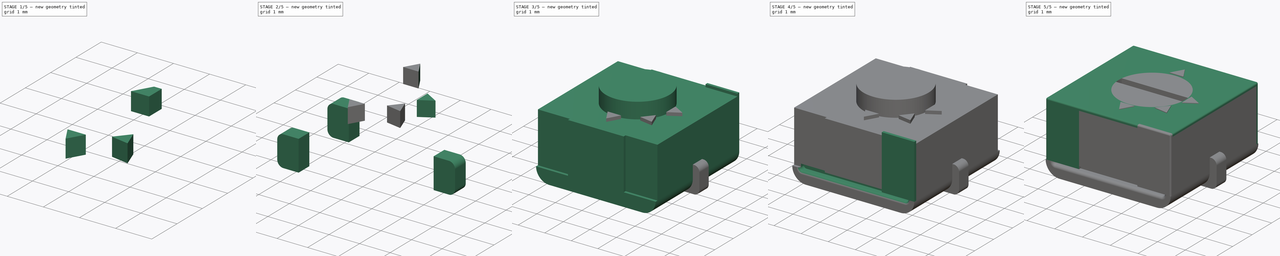
[diagram: build sequence overview — one tinted view per stage of 5, left to right]
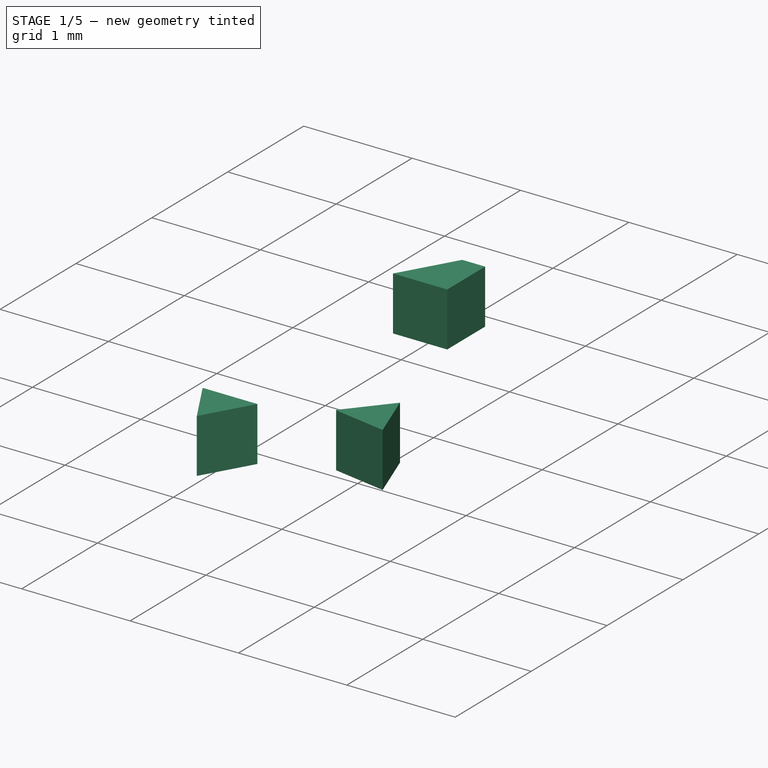
[diagram: stage 1 of 5 — iso view after this stage's code; geometry added in this stage tinted green]
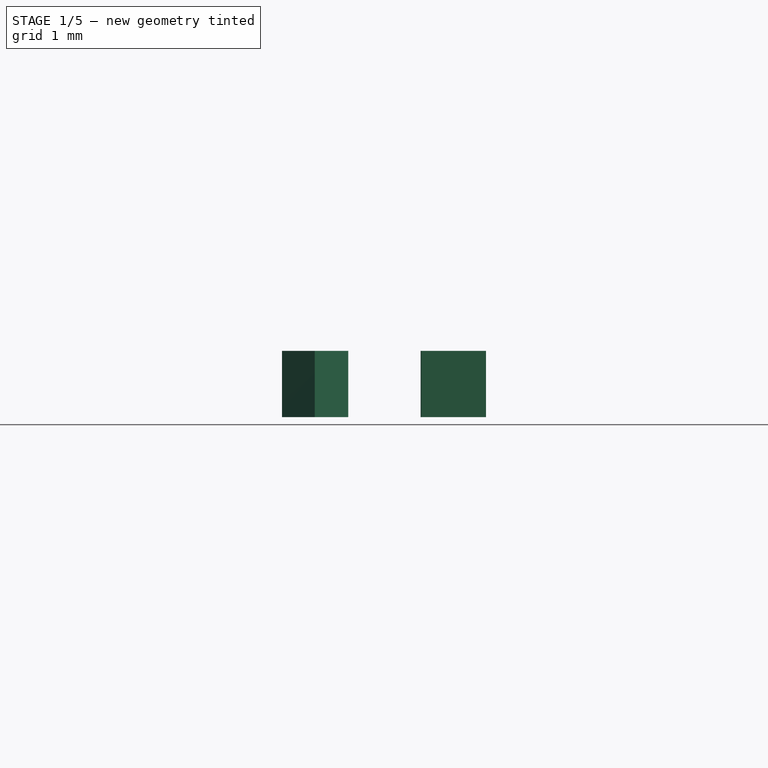
[diagram: stage 1 of 5 — front view after this stage's code; geometry added in this stage tinted green]
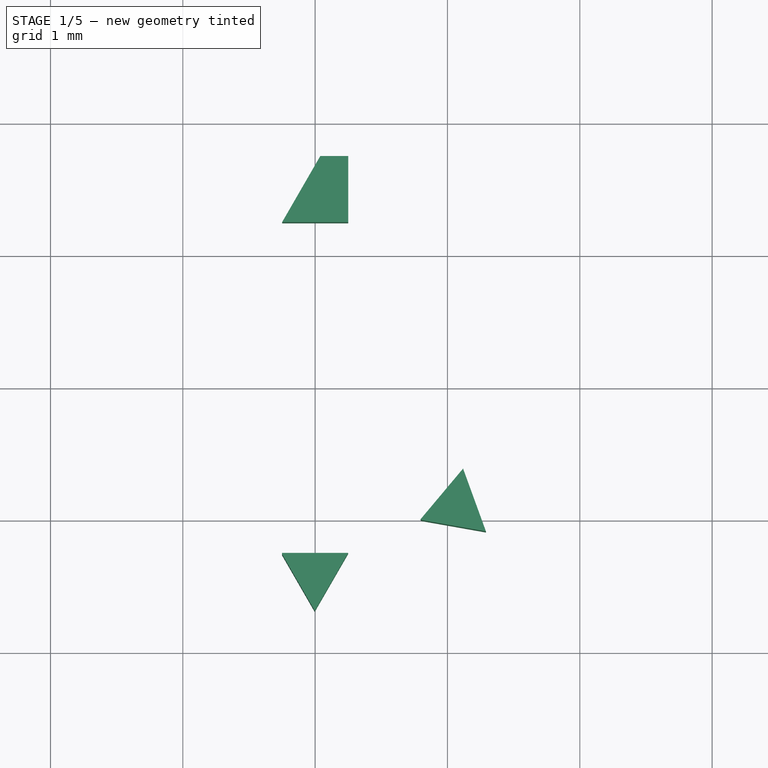
[diagram: stage 1 of 5 — top view after this stage's code; geometry added in this stage tinted green]
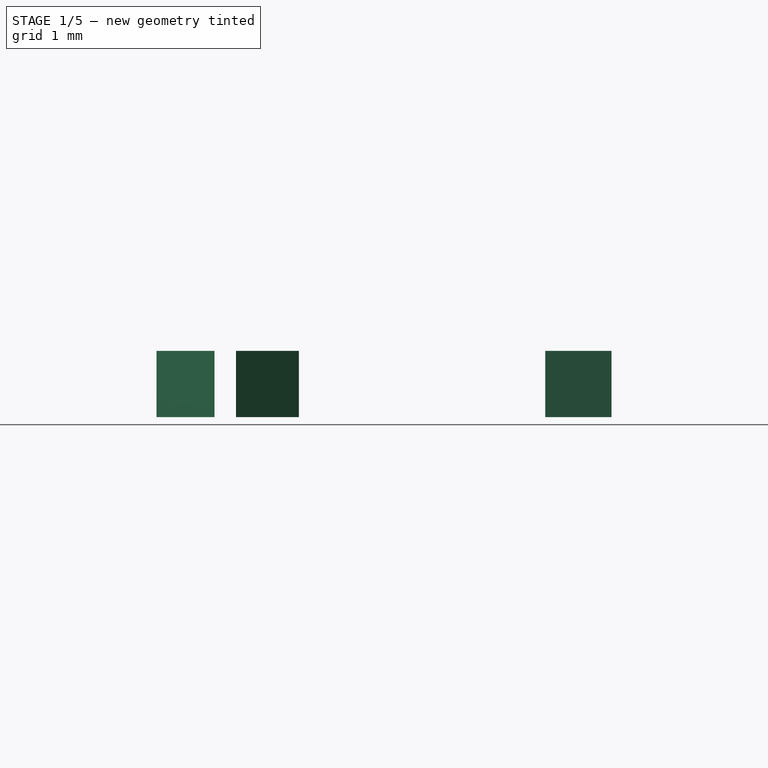
[diagram: stage 1 of 5 — right view after this stage's code; geometry added in this stage tinted green]
FCSTD DOCUMENT  (FreeCAD 0.17R11223 (Git))
Label: Potentiometer_Bourns_3314J_Vertical_03
License: All rights reserved
LicenseURL: http://en.wikipedia.org/wiki/All_rights_reserved
objects: Part::Box×27, Part::Cut×17, Part::Fillet×14, Part::MultiFuse×4, Part::Cylinder×3, Sketcher::SketchObject×1, PartDesign::Pad×1, PartDesign::Body×1
note: 69 computed .brp shape members not serialized (recipe doc carries the construction recipe); baked Part::Feature solids carry a one-line shape summary decoded from their .brp

FEATURE [Part::Box] Box027  label="Kub027"
  AttacherType = Attacher::AttachEngine3D
  Height = 0.5
  Length = 0.5
  Placement = pos=(-0.25,1.25,2.02) rot=(0,0,1;0rad)
  Width = 0.5
FEATURE [Part::Box] Box029  label="Kub029"
  AttacherType = Attacher::AttachEngine3D
  Height = 0.5
  Length = 1
  Placement = pos=(-0.394,1,2.02) rot=(0,0,1;1.0472rad)
  Width = 1
FEATURE [Part::Cut] Cut019
  Base = -> Box027
  Tool = -> Box029
FEATURE [Part::Box] Box030  label="Kub030"
  AttacherType = Attacher::AttachEngine3D
  Height = 0.5
  Length = 0.5
  Placement = pos=(-0.25,1.25,2.02) rot=(0,0,1;0rad)
  Width = 0.5
FEATURE [Part::Box] Box031  label="Kub031"
  AttacherType = Attacher::AttachEngine3D
  Height = 0.5
  Length = 1
  Placement = pos=(0.4,1,2.02) rot=(0,0,1;0.523599rad)
  Width = 1
FEATURE [Part::Box] Box032  label="Kub032"
  AttacherType = Attacher::AttachEngine3D
  Height = 0.5
  Length = 1
  Placement = pos=(-0.394,1,2.02) rot=(0,0,1;1.0472rad)
  Width = 1
FEATURE [Part::Cut] Cut021
  Base = -> Box030
  Tool = -> Box032
FEATURE [Part::Cut] Cut022
  Base = -> Cut021
  Placement = pos=(0,0,0) rot=(0,0,1;3.14159rad)
  Tool = -> Box031
FEATURE [Part::Box] Box033  label="Kub033"
  AttacherType = Attacher::AttachEngine3D
  Height = 0.5
  Length = 0.5
  Placement = pos=(-0.25,1.25,2.02) rot=(0,0,1;0rad)
  Width = 0.5
FEATURE [Part::Box] Box034  label="Kub034"
  AttacherType = Attacher::AttachEngine3D
  Height = 0.5
  Length = 1
  Placement = pos=(0.4,1,2.02) rot=(0,0,1;0.523599rad)
  Width = 1
FEATURE [Part::Box] Box035  label="Kub035"
  AttacherType = Attacher::AttachEngine3D
  Height = 0.5
  Length = 1
  Placement = pos=(-0.394,1,2.02) rot=(0,0,1;1.0472rad)
  Width = 1
FEATURE [Part::Cut] Cut023
  Base = -> Box033
  Tool = -> Box035
FEATURE [Part::Cut] Cut024
  Base = -> Cut023
  Placement = pos=(0,0,0) rot=(0,0,1;4.01426rad)
  Tool = -> Box034
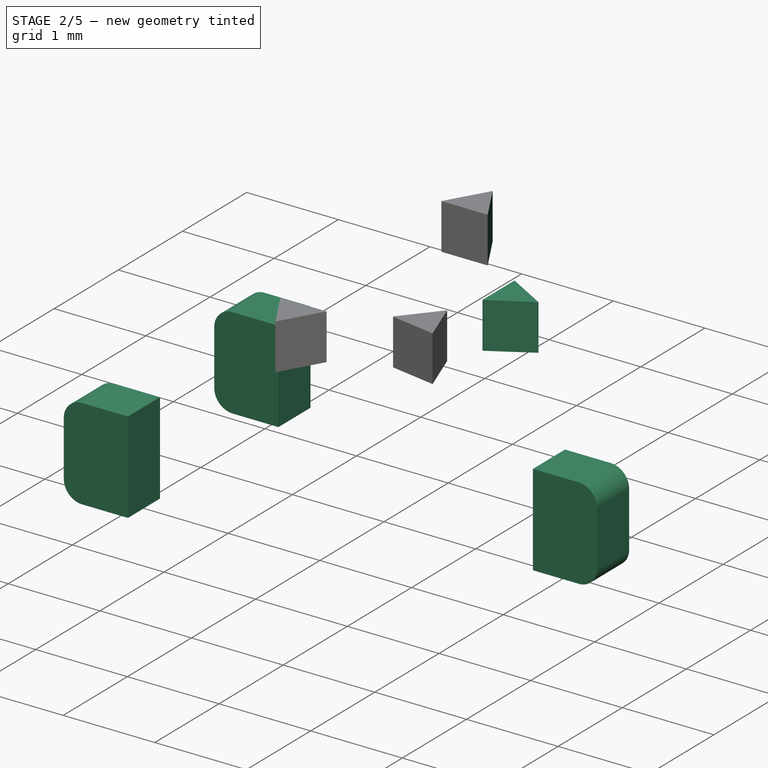
[diagram: stage 2 of 5 — iso view after this stage's code; geometry added in this stage tinted green]
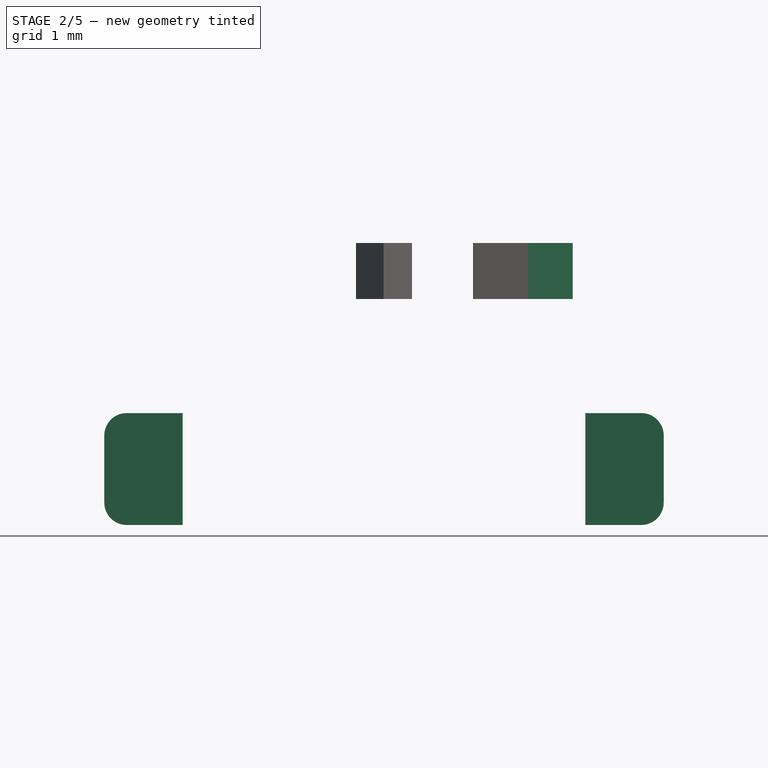
[diagram: stage 2 of 5 — front view after this stage's code; geometry added in this stage tinted green]
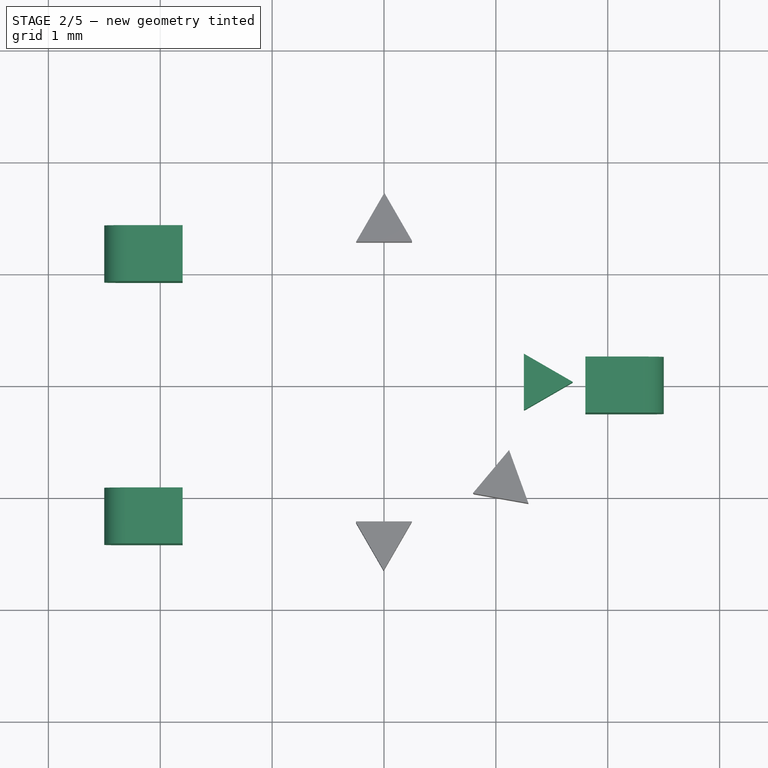
[diagram: stage 2 of 5 — top view after this stage's code; geometry added in this stage tinted green]
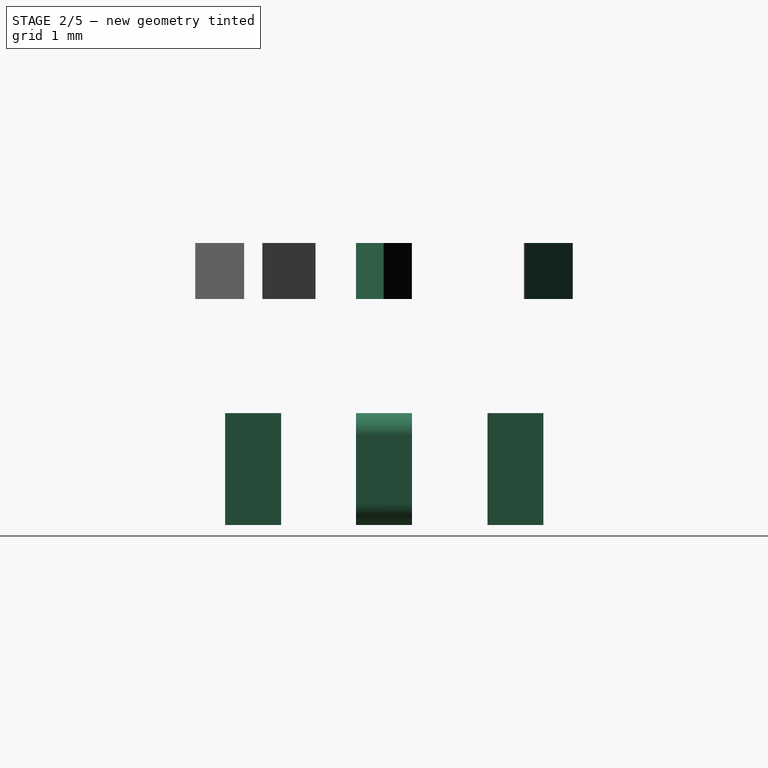
[diagram: stage 2 of 5 — right view after this stage's code; geometry added in this stage tinted green]
FEATURE [Part::Box] Box009  label="Kub009"
  AttacherType = Attacher::AttachEngine3D
  Height = 0.5
  Length = 0.5
  Placement = pos=(-0.25,1.25,2.02) rot=(0,0,1;0rad)
  Width = 0.5
FEATURE [Part::Box] Box010  label="Kub010"
  AttacherType = Attacher::AttachEngine3D
  Height = 0.5
  Length = 1
  Placement = pos=(0.4,1,2.02) rot=(0,0,1;0.523599rad)
  Width = 1
FEATURE [Part::Box] Box011  label="Kub011"
  AttacherType = Attacher::AttachEngine3D
  Height = 0.5
  Length = 1
  Placement = pos=(-0.394,1,2.02) rot=(0,0,1;1.0472rad)
  Width = 1
FEATURE [Part::Box] Box024  label="Kub024"
  AttacherType = Attacher::AttachEngine3D
  Height = 1
  Length = 0.7
  Placement = pos=(1.8,-0.25,0) rot=(0,0,1;0rad)
  Width = 0.5
FEATURE [Part::Box] Box025  label="Kub025"
  AttacherType = Attacher::AttachEngine3D
  Height = 1
  Length = 0.7
  Placement = pos=(-2.5,-1.42,0) rot=(0,0,1;0rad)
  Width = 0.5
FEATURE [Part::Box] Box026  label="Kub026"
  AttacherType = Attacher::AttachEngine3D
  Height = 1
  Length = 0.7
  Placement = pos=(-2.5,0.925,0) rot=(0,0,1;0rad)
  Width = 0.5
FEATURE [Part::Fillet] Fillet011
  Base = -> Box024
  Edges = 2 edges r=0.2: [Edge6,Edge8]
FEATURE [Part::Fillet] Fillet012
  Base = -> Box025
  Edges = 2 edges r=0.2: [Edge2,Edge4]
FEATURE [Part::Fillet] Fillet013
  Base = -> Box026
  Edges = 2 edges r=0.2: [Edge2,Edge4]
FEATURE [Part::Cut] Cut017
  Base = -> Box009
  Tool = -> Box011
FEATURE [Part::Cut] Cut018
  Base = -> Cut017
  Tool = -> Box010
FEATURE [Part::Box] Box028  label="Kub028"
  AttacherType = Attacher::AttachEngine3D
  Height = 0.5
  Length = 1
  Placement = pos=(0.4,1,2.02) rot=(0,0,1;0.523599rad)
  Width = 1
FEATURE [Part::Cut] Cut020
  Base = -> Cut019
  Placement = pos=(0,0,0) rot=(0,0,-1;1.5708rad)
  Tool = -> Box028
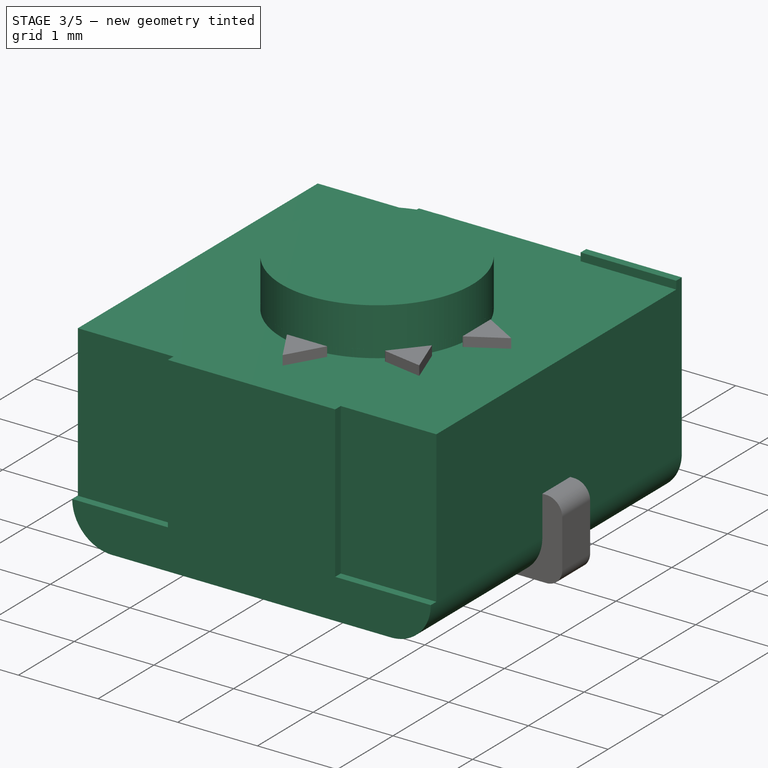
[diagram: stage 3 of 5 — iso view after this stage's code; geometry added in this stage tinted green]
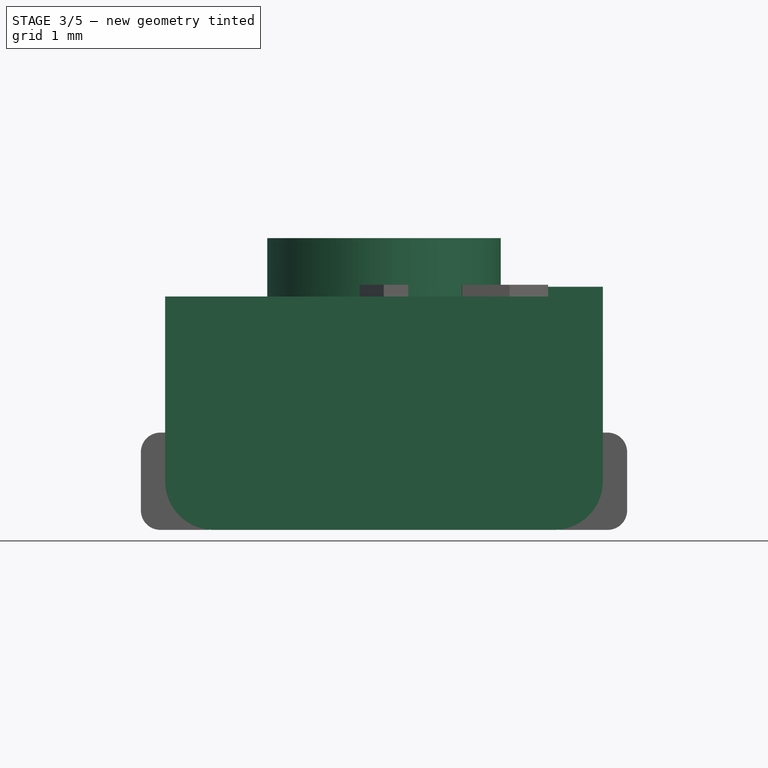
[diagram: stage 3 of 5 — front view after this stage's code; geometry added in this stage tinted green]
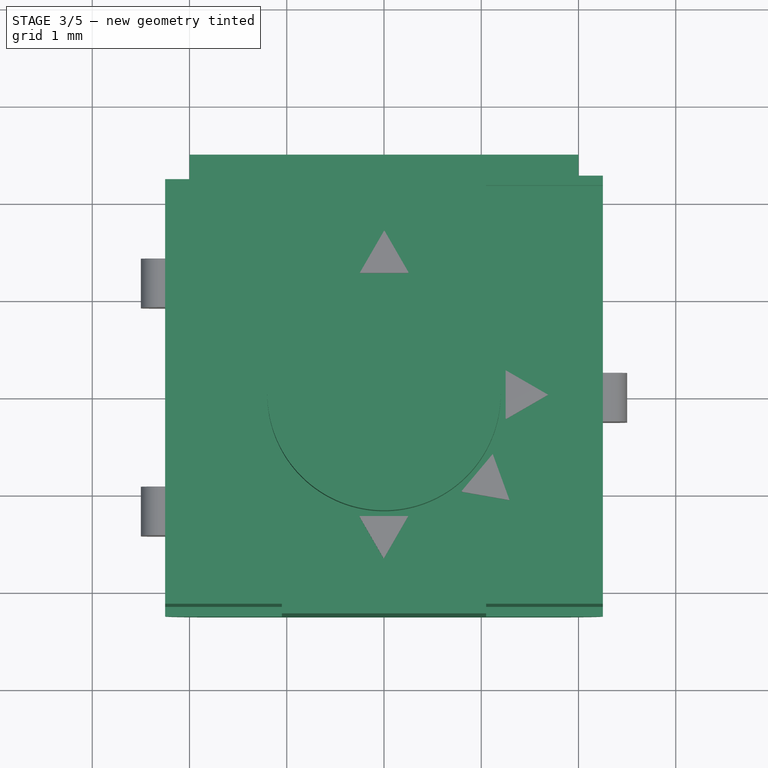
[diagram: stage 3 of 5 — top view after this stage's code; geometry added in this stage tinted green]
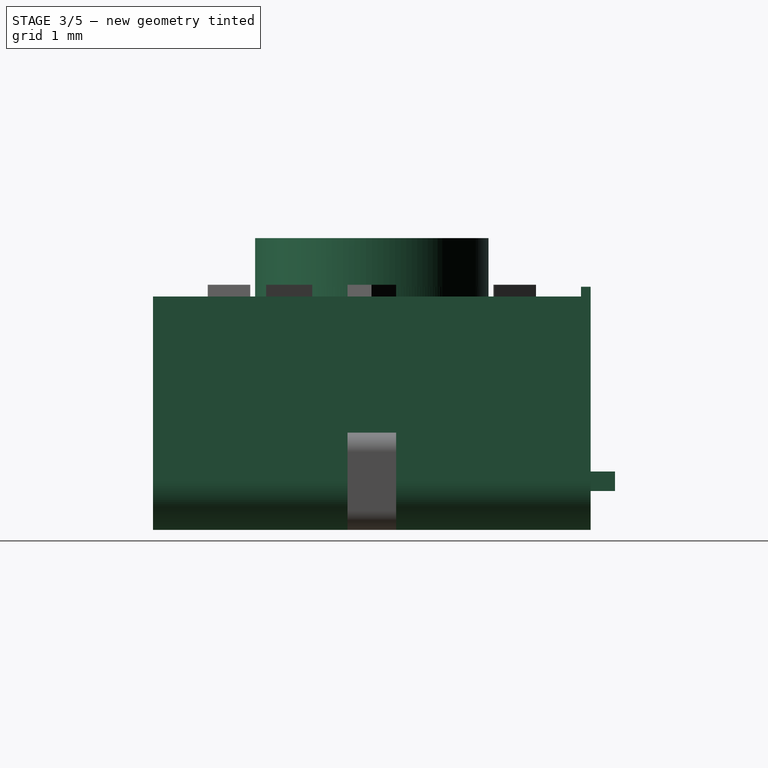
[diagram: stage 3 of 5 — right view after this stage's code; geometry added in this stage tinted green]
FEATURE [Sketcher::SketchObject] Sketch
  MapMode = 5
  Support = -> [XY_Plane]
  sketch-geometry (4):
    g0: LineSegment StartX=-2.25 StartY=2.25 StartZ=0 EndX=2.25 EndY=2.25 EndZ=0
    g1: LineSegment StartX=2.25 StartY=2.25 StartZ=0 EndX=2.25 EndY=-2.25 EndZ=0
    g2: LineSegment StartX=2.25 StartY=-2.25 StartZ=0 EndX=-2.25 EndY=-2.25 EndZ=0
    g3: LineSegment StartX=-2.25 StartY=-2.25 StartZ=0 EndX=-2.25 EndY=2.25 EndZ=0
  constraints (12):
    c: Coincident(g0,g1)
    c: Coincident(g1,g2)
    c: Coincident(g2,g3)
    c: Coincident(g3,g0)
    c: Horizontal(g0)
    c: Horizontal(g2)
    c: Vertical(g1)
    c: Vertical(g3)
    c: DistanceY(g2,g0) = 4.5
    c: DistanceX(g0,g0) = 4.5
    c: DistanceY(g-1,g0) = 2.25
    c: DistanceX(g0,g-1) = 2.25
FEATURE [PartDesign::Pad] Pad
  Length = 2.4
  Length2 = 100
  Profile = -> Sketch
  Type = 0
FEATURE [PartDesign::Body] Body
  Group = -> [Sketch,Pad]
  Origin = -> BodyOrigin
  Tip = -> Pad
FEATURE [Part::Fillet] Fillet
  Base = -> Pad
  Edges = 2 edges r=0.5: [Edge6,Edge11]
FEATURE [Part::Box] Box003  label="Kub003"
  AttacherType = Attacher::AttachEngine3D
  Height = 2
  Length = 1.2
  Placement = pos=(1.05,-2.25,0.5) rot=(0,0,1;0rad)
  Width = 0.1
FEATURE [Part::Box] Box004  label="Kub004"
  AttacherType = Attacher::AttachEngine3D
  Height = 2
  Length = 1.2
  Placement = pos=(-2.25,-2.25,0.5) rot=(0,0,1;0rad)
  Width = 0.1
FEATURE [Part::Box] Box005  label="Kub005"
  AttacherType = Attacher::AttachEngine3D
  Height = 2
  Length = 1.2
  Placement = pos=(-2.25,2.15,0.5) rot=(0,0,1;0rad)
  Width = 0.1
FEATURE [Part::Box] Box006  label="Kub006"
  AttacherType = Attacher::AttachEngine3D
  Height = 2
  Length = 1.2
  Placement = pos=(1.05,2.15,0.5) rot=(0,0,1;0rad)
  Width = 0.1
FEATURE [Part::Cut] Cut
  Base = -> Fillet
  Tool = -> Box005
FEATURE [Part::Cut] Cut001
  Base = -> Cut
  Tool = -> Box004
FEATURE [Part::Cut] Cut002
  Base = -> Cut001
  Tool = -> Box003
FEATURE [Part::Cylinder] Cylinder001
  Angle = 360
  AttacherType = Attacher::AttachEngine3D
  Height = 2
  Placement = pos=(0,0,1) rot=(0,0,1;0rad)
  Radius = 1.2
FEATURE [Part::Cylinder] Cylinder002
  Angle = 360
  AttacherType = Attacher::AttachEngine3D
  Height = 1.5
  Placement = pos=(0,0,1) rot=(0,0,1;0rad)
  Radius = 1.2
FEATURE [Part::Box] Box021  label="Kub021"
  AttacherType = Attacher::AttachEngine3D
  Height = 0.2
  Length = 4
  Placement = pos=(-2,2,0.4) rot=(0,0,1;0rad)
  Width = 0.5
FEATURE [Part::Box] Box023  label="Kub023"
  AttacherType = Attacher::AttachEngine3D
  Height = 0.3
  Length = 2.4
  Placement = pos=(-1.2,-0.15,2.3) rot=(0,0,1;0rad)
  Width = 0.3
FEATURE [Part::Cut] Cut016
  Base = -> Cylinder002
  Tool = -> Box023
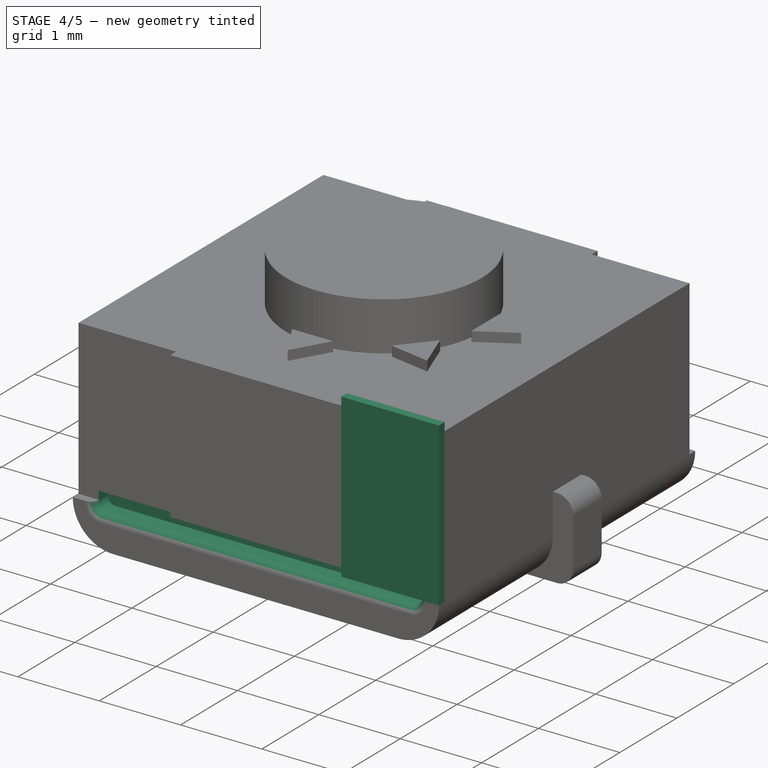
[diagram: stage 4 of 5 — iso view after this stage's code; geometry added in this stage tinted green]
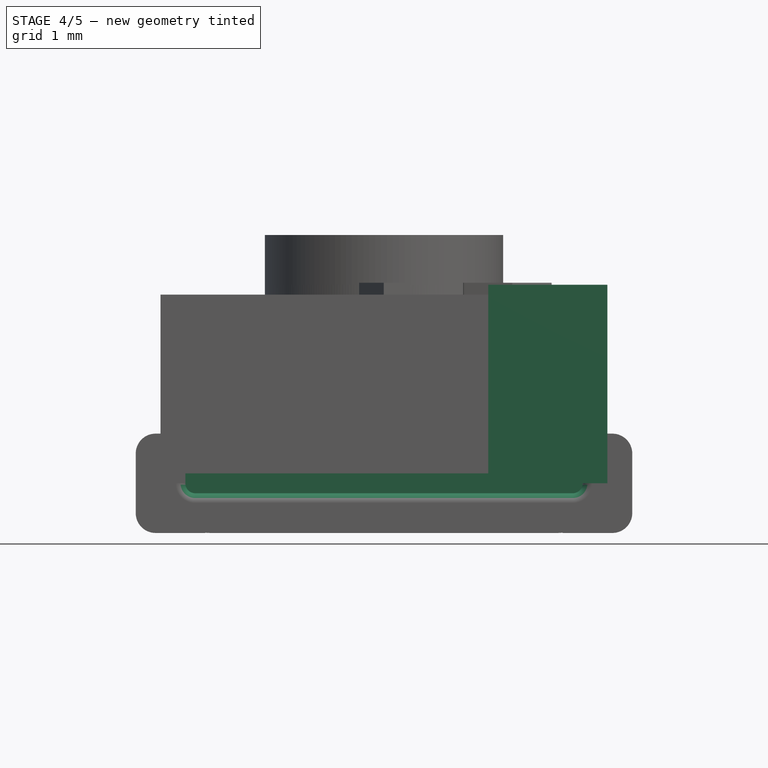
[diagram: stage 4 of 5 — front view after this stage's code; geometry added in this stage tinted green]
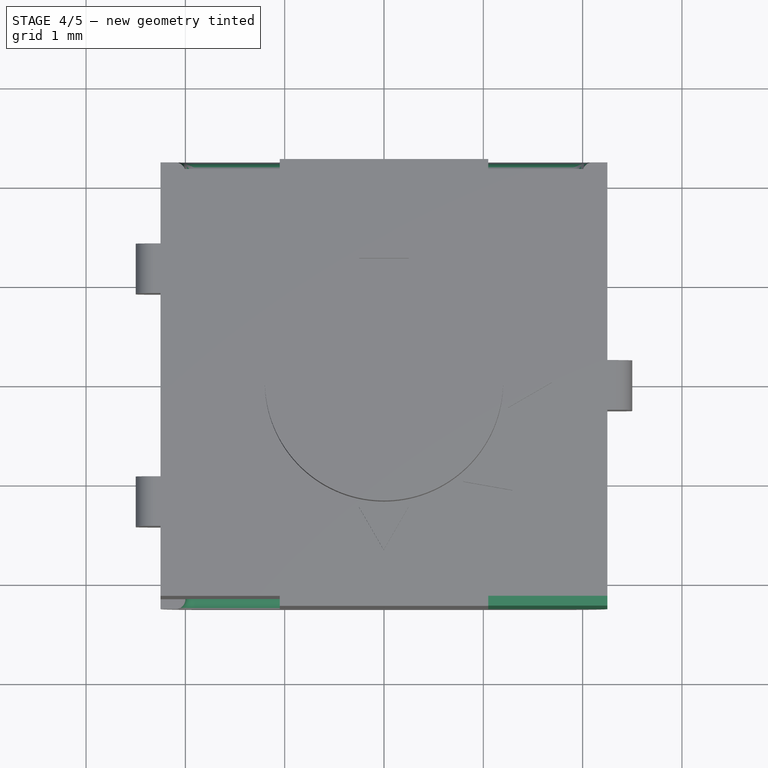
[diagram: stage 4 of 5 — top view after this stage's code; geometry added in this stage tinted green]
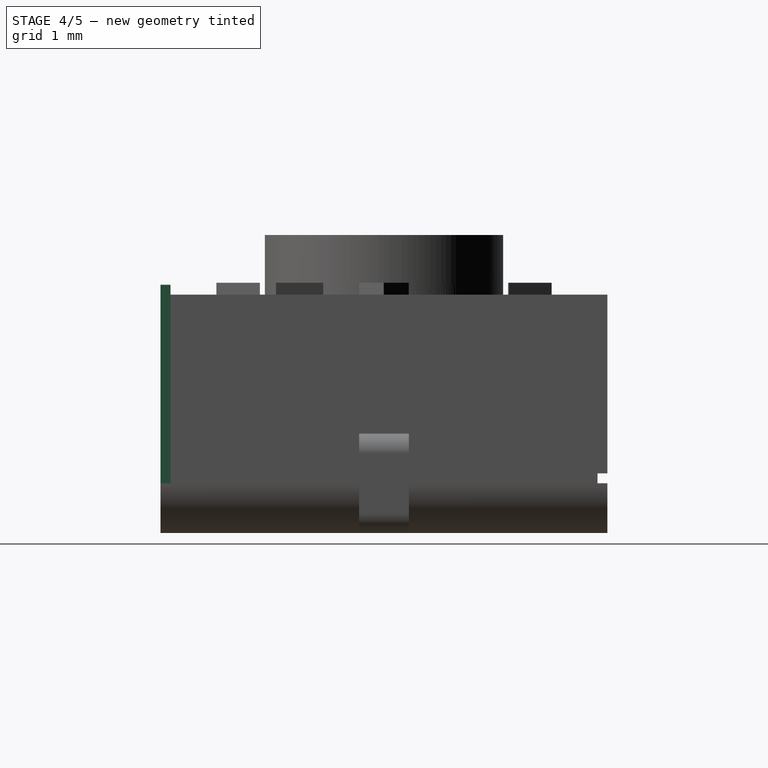
[diagram: stage 4 of 5 — right view after this stage's code; geometry added in this stage tinted green]
FEATURE [Part::Box] Box007  label="Kub007"
  AttacherType = Attacher::AttachEngine3D
  Height = 2
  Length = 1.2
  Placement = pos=(1.05,-2.25,0.5) rot=(0,0,1;0rad)
  Width = 0.1
FEATURE [Part::Cut] Cut003
  Base = -> Cut002
  Tool = -> Box006
FEATURE [Part::Cylinder] Cylinder
  Angle = 360
  AttacherType = Attacher::AttachEngine3D
  Height = 2
  Placement = pos=(0,0,1) rot=(0,0,1;0rad)
  Radius = 1.2
FEATURE [Part::Cut] Cut005
  Base = -> Cut003
  Tool = -> Cylinder001
FEATURE [Part::Box] Box022  label="Kub022"
  AttacherType = Attacher::AttachEngine3D
  Height = 0.2
  Length = 4
  Placement = pos=(-2,-2.5,0.4) rot=(0,0,1;0rad)
  Width = 0.5
FEATURE [Part::Cut] Cut014
  Base = -> Cut005
  Tool = -> Box021
FEATURE [Part::Fillet] Fillet005
  Base = -> Cut014
  Edges = 1 edges r=0.1: [Edge26]
FEATURE [Part::Fillet] Fillet006
  Base = -> Fillet005
  Edges = 1 edges r=0.1: [Edge10]
FEATURE [Part::Fillet] Fillet007
  Base = -> Fillet006
  Edges = 3 edges r=0.1: [Edge1,Edge2,Edge3]
FEATURE [Part::Cut] Cut015
  Base = -> Fillet007
  Tool = -> Box022
FEATURE [Part::Fillet] Fillet008
  Base = -> Cut015
  Edges = 1 edges r=0.1: [Edge82]
FEATURE [Part::Fillet] Fillet009
  Base = -> Fillet008
  Edges = 1 edges r=0.1: [Edge20]
FEATURE [Part::Fillet] Fillet010
  Base = -> Fillet009
  Edges = 3 edges r=0.1: [Edge1,Edge2,Edge3]
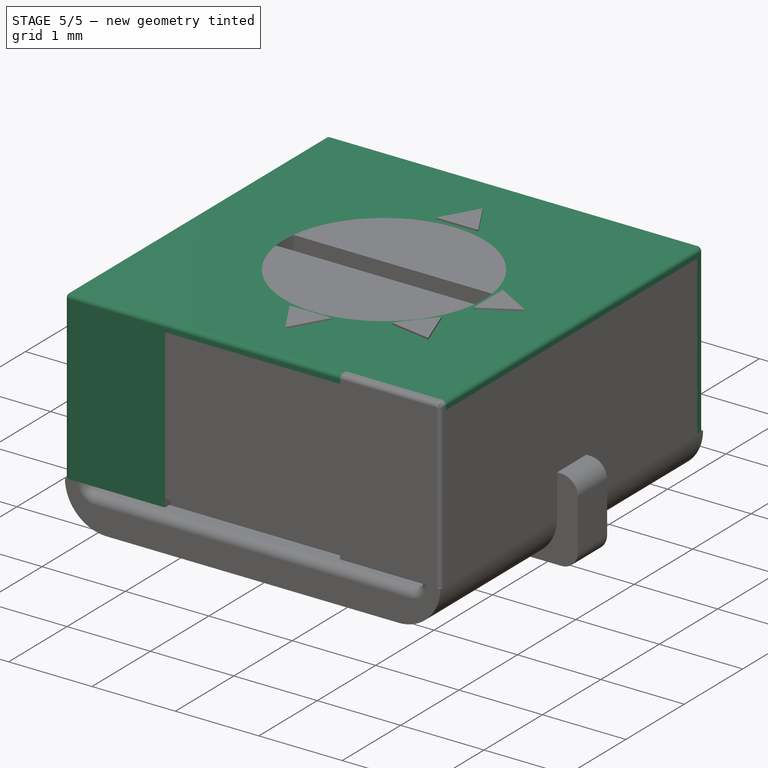
[diagram: stage 5 of 5 — iso view after this stage's code; geometry added in this stage tinted green]
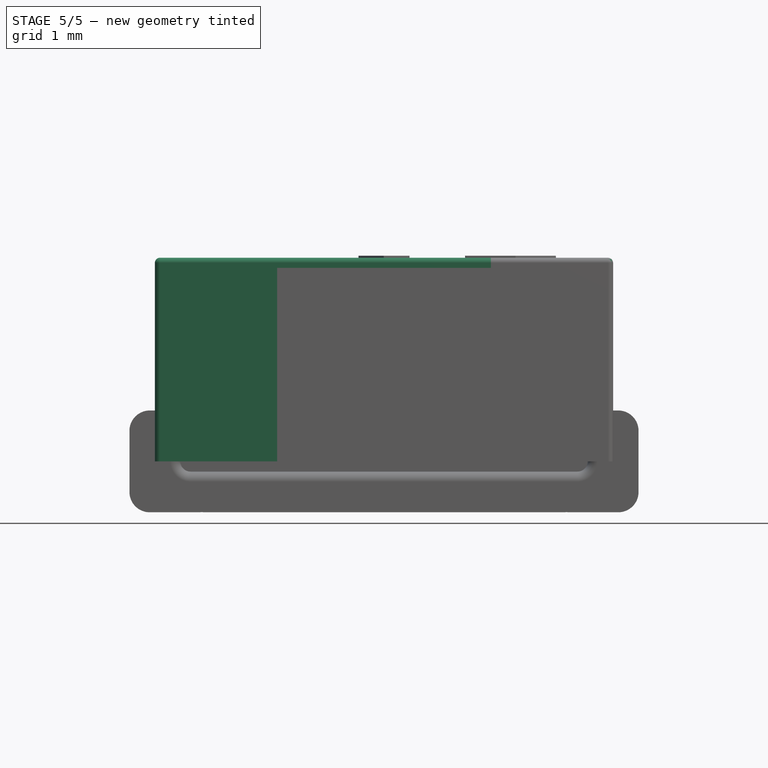
[diagram: stage 5 of 5 — front view after this stage's code; geometry added in this stage tinted green]
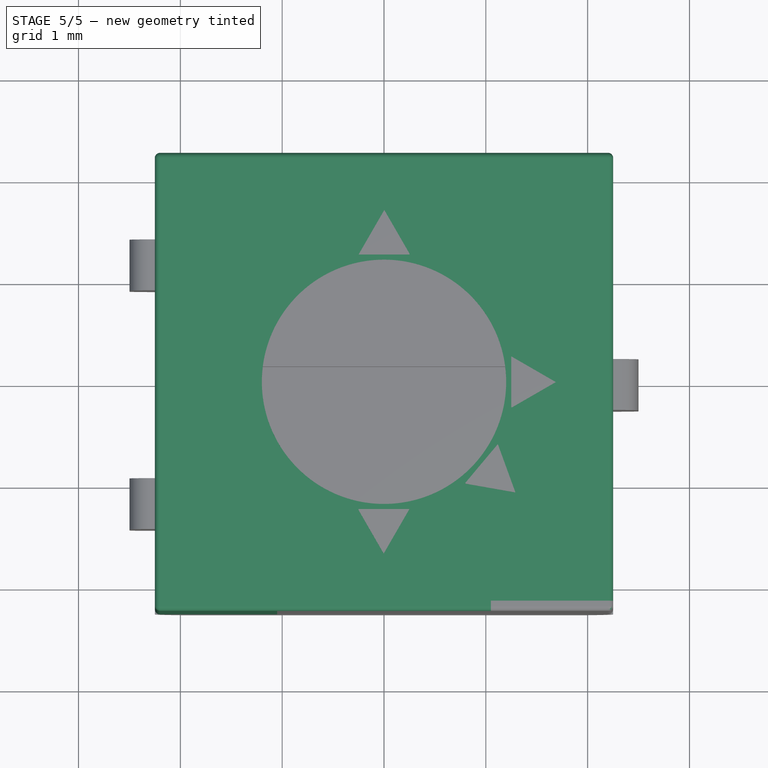
[diagram: stage 5 of 5 — top view after this stage's code; geometry added in this stage tinted green]
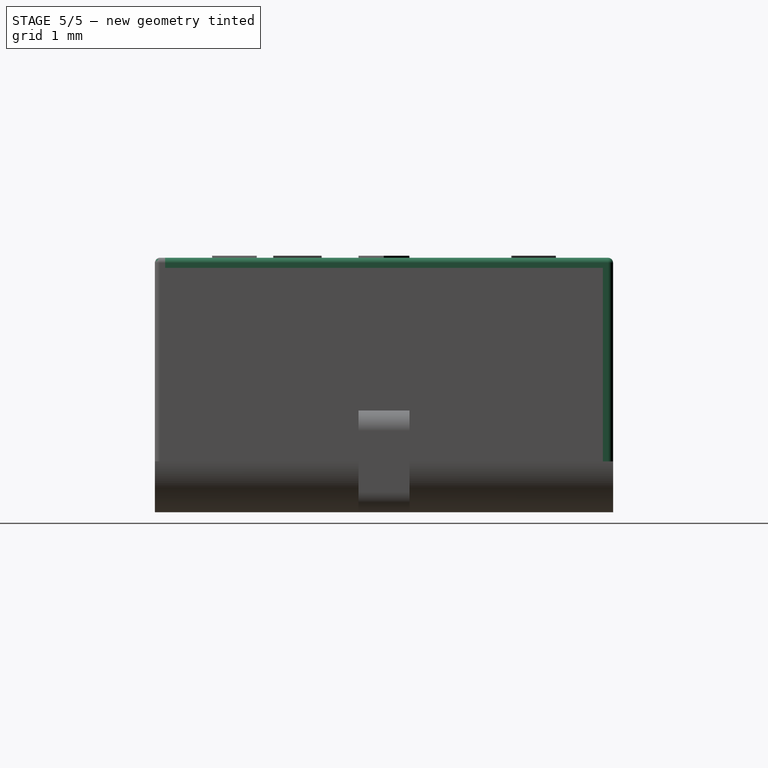
[diagram: stage 5 of 5 — right view after this stage's code; geometry added in this stage tinted green]
FEATURE [Part::Box] Box  label="Kub"
  AttacherType = Attacher::AttachEngine3D
  Height = 0.1
  Length = 4.5
  Placement = pos=(-2.25,-2.25,2.4) rot=(0,0,1;0rad)
  Width = 4.5
FEATURE [Part::Box] Box001  label="Kub001"
  AttacherType = Attacher::AttachEngine3D
  Height = 2
  Length = 1.2
  Placement = pos=(-2.25,2.15,0.5) rot=(0,0,1;0rad)
  Width = 0.1
FEATURE [Part::Box] Box002  label="Kub002"
  AttacherType = Attacher::AttachEngine3D
  Height = 2
  Length = 1.2
  Placement = pos=(1.05,2.15,0.5) rot=(0,0,1;0rad)
  Width = 0.1
FEATURE [Part::Box] Box008  label="Kub008"
  AttacherType = Attacher::AttachEngine3D
  Height = 2
  Length = 1.2
  Placement = pos=(-2.25,-2.25,0.5) rot=(0,0,1;0rad)
  Width = 0.1
FEATURE [Part::MultiFuse] Fusion
  Shapes = -> [Box,Box007]
FEATURE [Part::MultiFuse] Fusion001
  Shapes = -> [Fusion,Box001]
FEATURE [Part::MultiFuse] Fusion002
  Shapes = -> [Fusion001,Box002]
FEATURE [Part::MultiFuse] Fusion003
  Shapes = -> [Fusion002,Box008]
FEATURE [Part::Fillet] Fillet001
  Base = -> Fusion003
  Edges = 1 edges r=0.05: [Edge30]
FEATURE [Part::Fillet] Fillet002
  Base = -> Fillet001
  Edges = 1 edges r=0.05: [Edge53]
FEATURE [Part::Fillet] Fillet003
  Base = -> Fillet002
  Edges = 1 edges r=0.05: [Edge54]
FEATURE [Part::Fillet] Fillet004
  Base = -> Fillet003
  Edges = 1 edges r=0.05: [Edge8]
FEATURE [Part::Cut] Cut004
  Base = -> Fillet004
  Tool = -> Cylinder
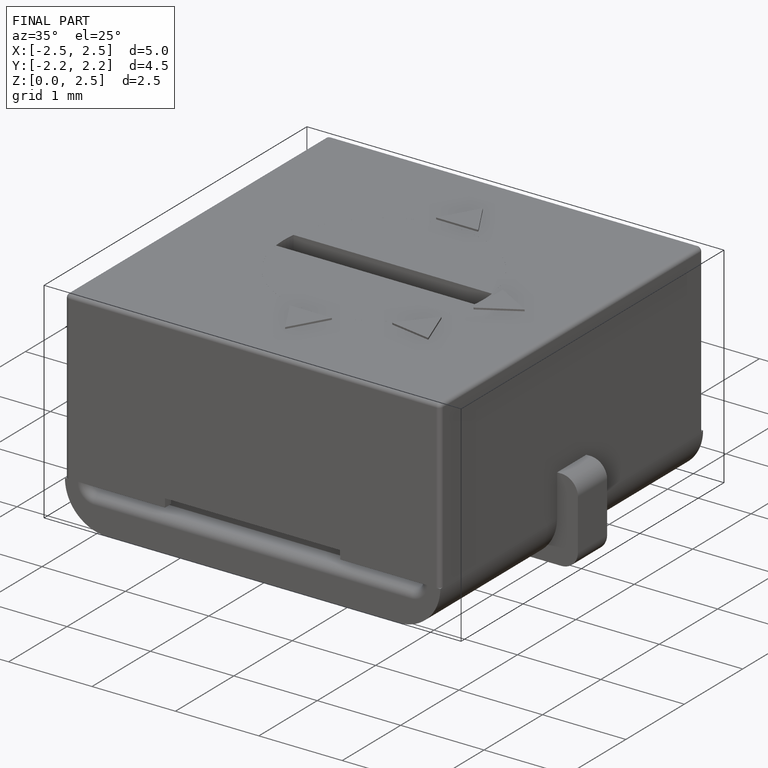
[diagram: finished part — iso view with bounding-box wireframe]
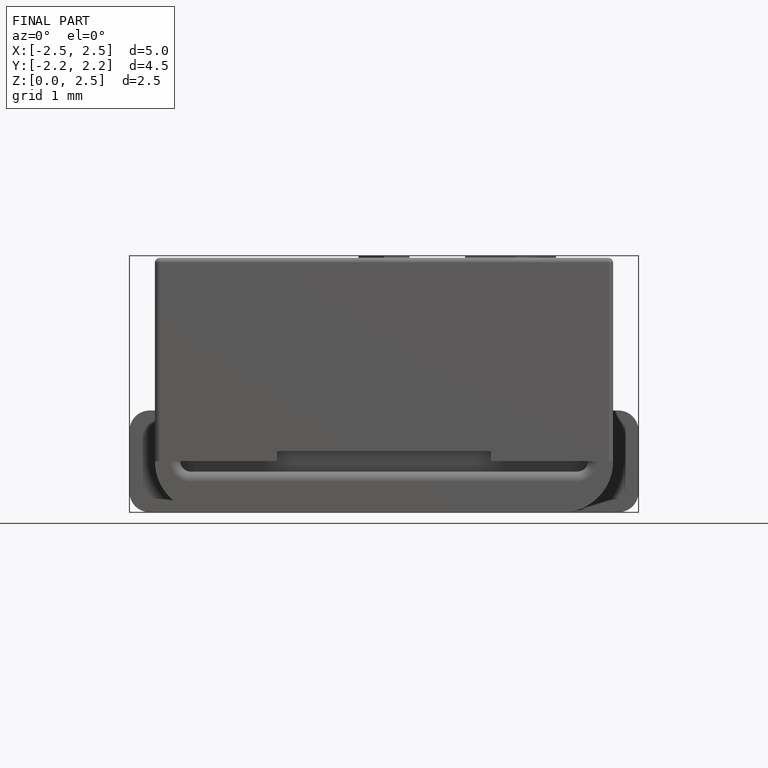
[diagram: finished part — front view with bounding-box wireframe]
